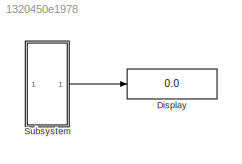
MODEL slx_1320450e1978
KIND model
CONFIG AbsTol = auto
CONFIG EnableMultiTasking = off
CONFIG FixedStep = auto
CONFIG MaxStep = auto
CONFIG MinStep = auto
CONFIG RelTol = 1e-3
CONFIG SampleTimeConstraint = Unconstrained
CONFIG SolverName = VariableStepAuto
CONFIG StartTime = 0.0
CONFIG StopTime = 10.0
BLOCK [Display] Display
  Decimation = 1
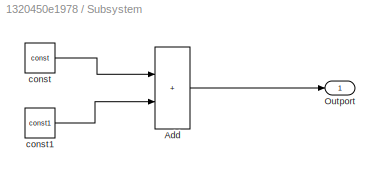
BLOCK [SubSystem] Subsystem
BLOCK [Sum] Subsystem/Add
  IconShape = rectangular
BLOCK [Outport] Subsystem/Outport
BLOCK [Constant] Subsystem/const
  Value = const
BLOCK [Constant] Subsystem/const1
  Value = const1
LINE Subsystem/Add:1 -> Subsystem/Outport:1
LINE Subsystem/const1:1 -> Subsystem/Add:2
LINE Subsystem/const:1 -> Subsystem/Add:1
LINE Subsystem:1 -> Display:1
